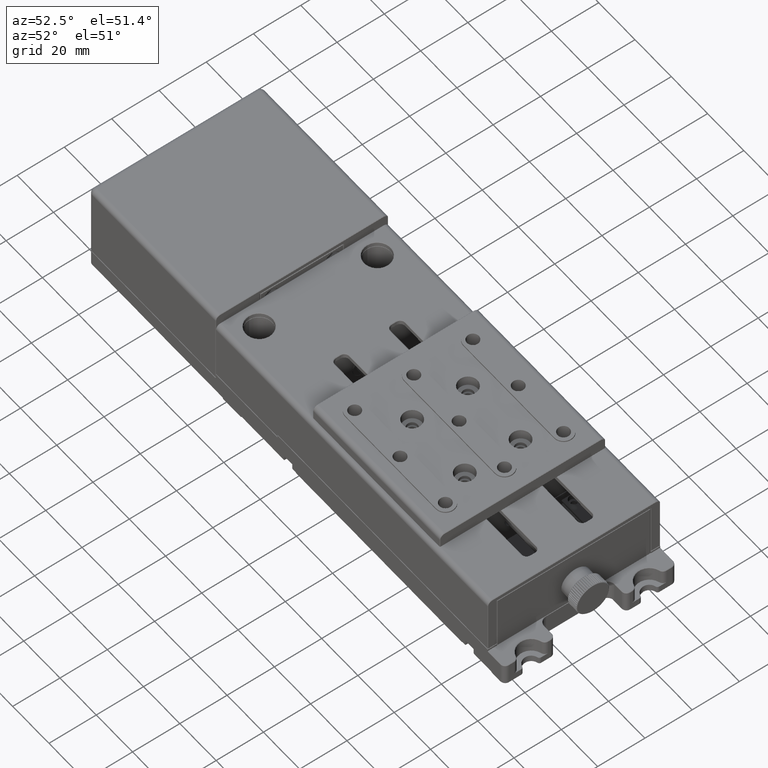
[diagram: clean part render]
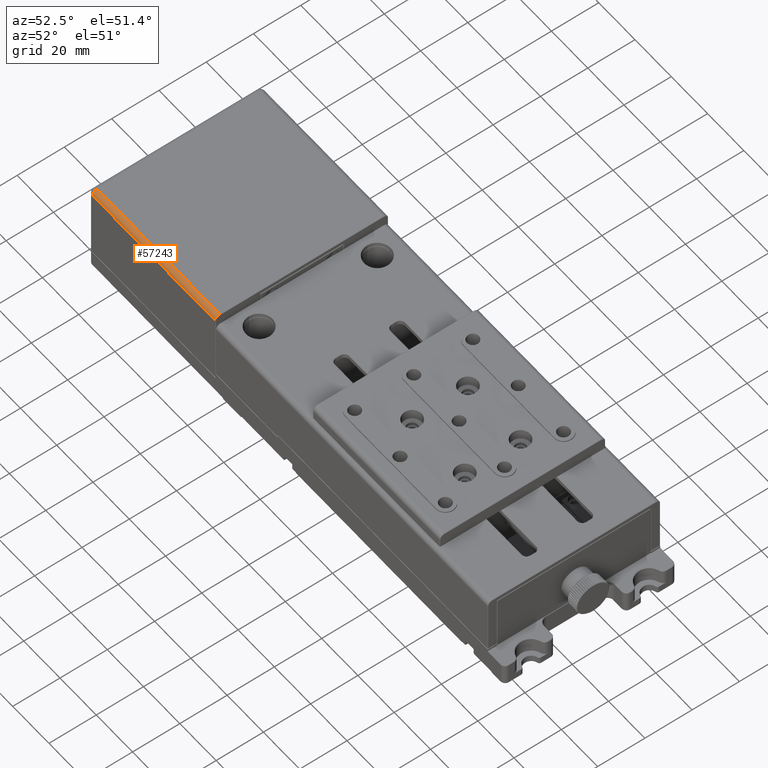
[diagram: same view with one face highlighted and labeled with its STEP entity id]
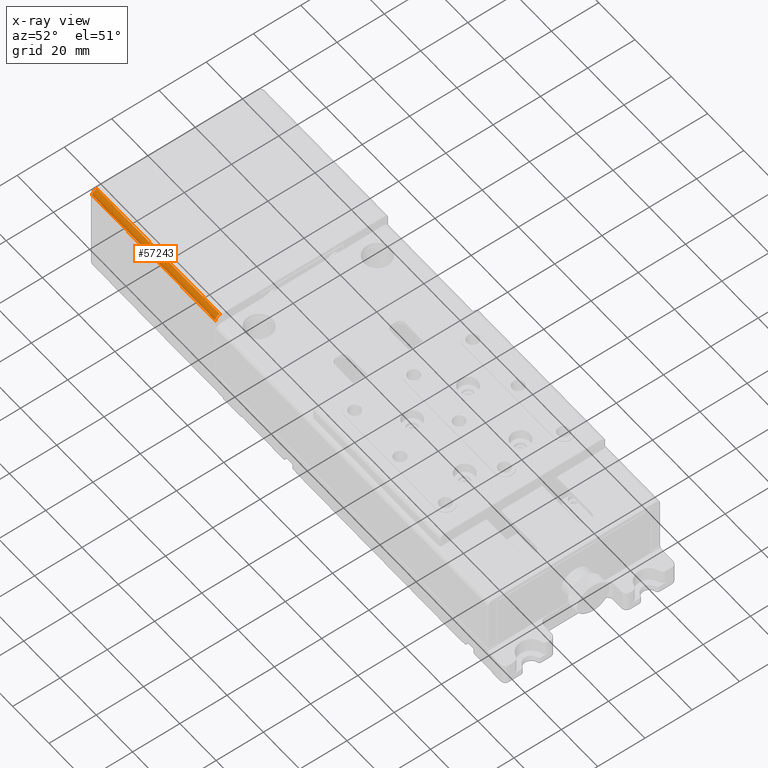
[diagram: x-ray of the same camera — body ghosted, the highlighted face saturated]
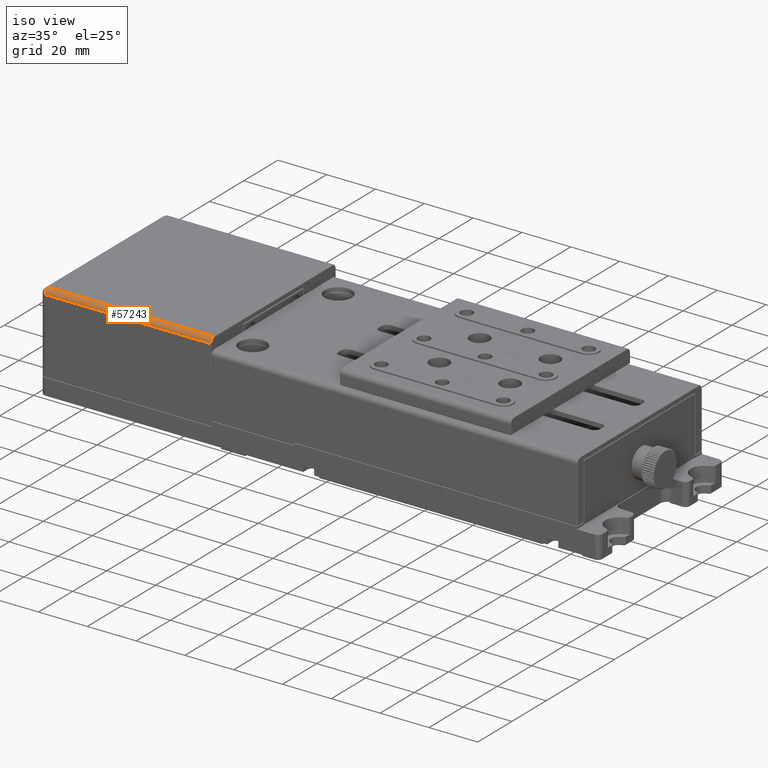
[diagram: same view with one face highlighted and labeled with its STEP entity id]
A machine part, auxiliary view. The second image highlights one B-rep face of the part: STEP entity #57243.
The next image is the same camera in x-ray: the body ghosted, the highlighted face saturated — about 0% of this face is hidden behind the body in this view.
A second angle (iso view) of the same face is appended — the face is thin or edge-on in the first view.
In plain terms, the highlighted cylindrical surface (edge-blend (fillet) strip) has radius 2 mm, axis along (-1, 0, 0).
Its self-contained STEP definition (entity closure, byte-faithful):
#3632 = DIRECTION ( 'NONE',  ( -1.000000000000000000, 0.000000000000000000, 0.000000000000000000 ) ) ;
#6924 = ORIENTED_EDGE ( 'NONE', *, *, #70944, .T. ) ;
#7259 = LINE ( 'NONE', #23502, #52589 ) ;
#8256 = EDGE_CURVE ( 'NONE', #36767, #39734, #42605, .T. ) ;
#9741 = DIRECTION ( 'NONE',  ( 0.000000000000000000, 0.000000000000000000, 1.000000000000000000 ) ) ;
#10909 = VERTEX_POINT ( 'NONE', #41821 ) ;
#12341 = ORIENTED_EDGE ( 'NONE', *, *, #8256, .T. ) ;
#17843 = VERTEX_POINT ( 'NONE', #57332 ) ;
#18588 = CARTESIAN_POINT ( 'NONE',  ( -151.4252599814024904, -43.46919745025275006, 32.50000000000000000 ) ) ;
#21424 = AXIS2_PLACEMENT_3D ( 'NONE', #27090, #39264, #9741 ) ;
#22873 = EDGE_CURVE ( 'NONE', #10909, #39734, #46009, .T. ) ;
#23502 = CARTESIAN_POINT ( 'NONE',  ( -83.42525998140230570, -45.46919745025279980, 32.50000000000000000 ) ) ;
#24343 = AXIS2_PLACEMENT_3D ( 'NONE', #18588, #41090, #28563 ) ;
#25428 = FACE_OUTER_BOUND ( 'NONE', #57601, .T. ) ;
#27090 = CARTESIAN_POINT ( 'NONE',  ( -83.62525998140229433, -43.46919745025279980, 32.50000000000000000 ) ) ;
#27499 = CARTESIAN_POINT ( 'NONE',  ( -83.62525998140229433, -43.46919745025279980, 34.50000000000000000 ) ) ;
#28563 = DIRECTION ( 'NONE',  ( 0.000000000000000000, 1.000000000000000000, 0.000000000000000000 ) ) ;
#30880 = DIRECTION ( 'NONE',  ( 1.000000000000000000, -3.445092848397665055E-16, 0.000000000000000000 ) ) ;
#36767 = VERTEX_POINT ( 'NONE', #47737 ) ;
#39264 = DIRECTION ( 'NONE',  ( -1.000000000000000000, 2.220446049250315053E-16, 0.000000000000000000 ) ) ;
#39530 = VECTOR ( 'NONE', #30880, 1000.000000000000000 ) ;
#39734 = VERTEX_POINT ( 'NONE', #27499 ) ;
#41090 = DIRECTION ( 'NONE',  ( 1.000000000000000000, 0.000000000000000000, 0.000000000000000000 ) ) ;
#41597 = CARTESIAN_POINT ( 'NONE',  ( -83.42525998140230570, -43.46919745025279980, 34.50000000000000000 ) ) ;
#41821 = CARTESIAN_POINT ( 'NONE',  ( -151.4252599814024904, -43.46919745025275006, 34.50000000000000000 ) ) ;
#42605 = CIRCLE ( 'NONE', #21424, 2.000000000000001776 ) ;
#43264 = EDGE_CURVE ( 'NONE', #36767, #17843, #7259, .T. ) ;
#46009 = LINE ( 'NONE', #41597, #39530 ) ;
#47737 = CARTESIAN_POINT ( 'NONE',  ( -83.62525998140229433, -45.46919745025279980, 32.50000000000000000 ) ) ;
#52589 = VECTOR ( 'NONE', #58163, 1000.000000000000000 ) ;
#52723 = DIRECTION ( 'NONE',  ( 0.000000000000000000, 1.000000000000000000, 0.000000000000000000 ) ) ;
#56114 = CIRCLE ( 'NONE', #24343, 2.000000000000001776 ) ;
#57243 = ADVANCED_FACE ( 'NONE', ( #25428 ), #69686, .T. ) ;
#57332 = CARTESIAN_POINT ( 'NONE',  ( -151.4252599814024904, -45.46919745025279980, 32.50000000000000000 ) ) ;
#57601 = EDGE_LOOP ( 'NONE', ( #59897, #12341, #71086, #6924 ) ) ;
#58163 = DIRECTION ( 'NONE',  ( -1.000000000000000000, 3.445092848397665055E-16, 0.000000000000000000 ) ) ;
#59338 = CARTESIAN_POINT ( 'NONE',  ( -83.42525998140230570, -43.46919745025279980, 32.50000000000000000 ) ) ;
#59897 = ORIENTED_EDGE ( 'NONE', *, *, #43264, .F. ) ;
#62658 = AXIS2_PLACEMENT_3D ( 'NONE', #59338, #3632, #52723 ) ;
#69686 = CYLINDRICAL_SURFACE ( 'NONE', #62658, 2.000000000000001776 ) ;
#70944 = EDGE_CURVE ( 'NONE', #10909, #17843, #56114, .T. ) ;
#71086 = ORIENTED_EDGE ( 'NONE', *, *, #22873, .F. ) ;